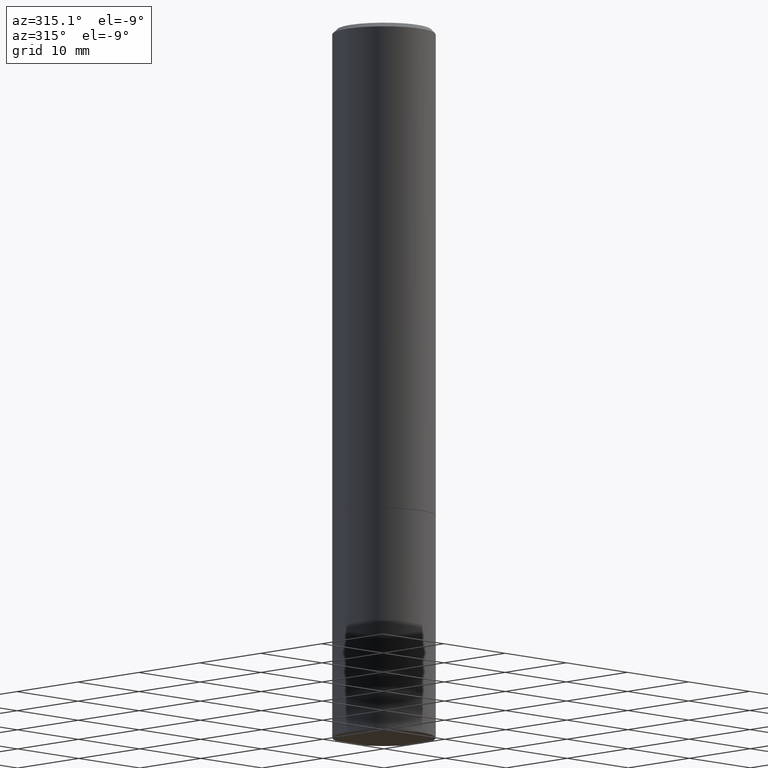
[diagram: clean part render]
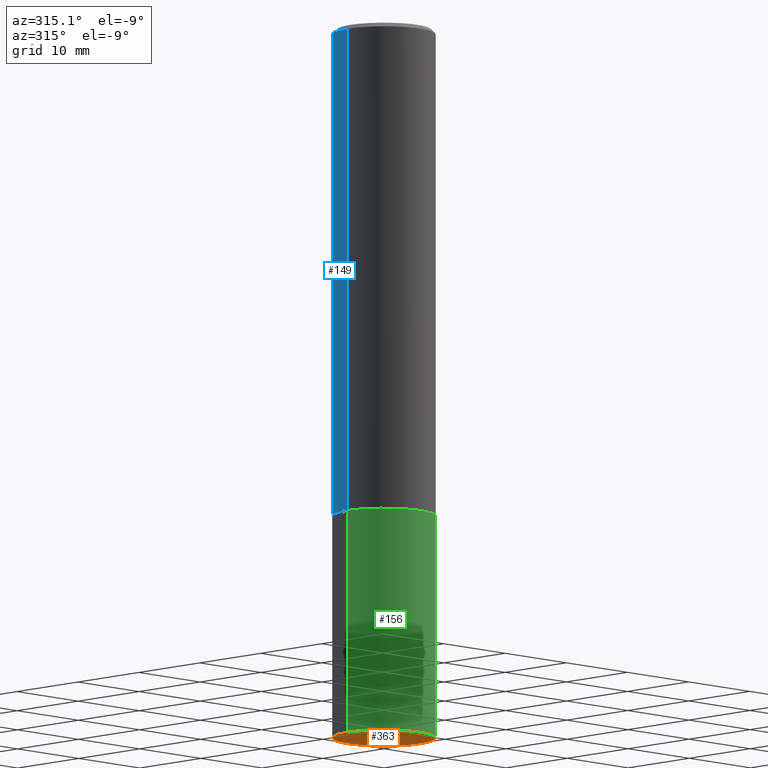
[diagram: same view with three faces highlighted in distinct colors, each labeled with its STEP entity id]
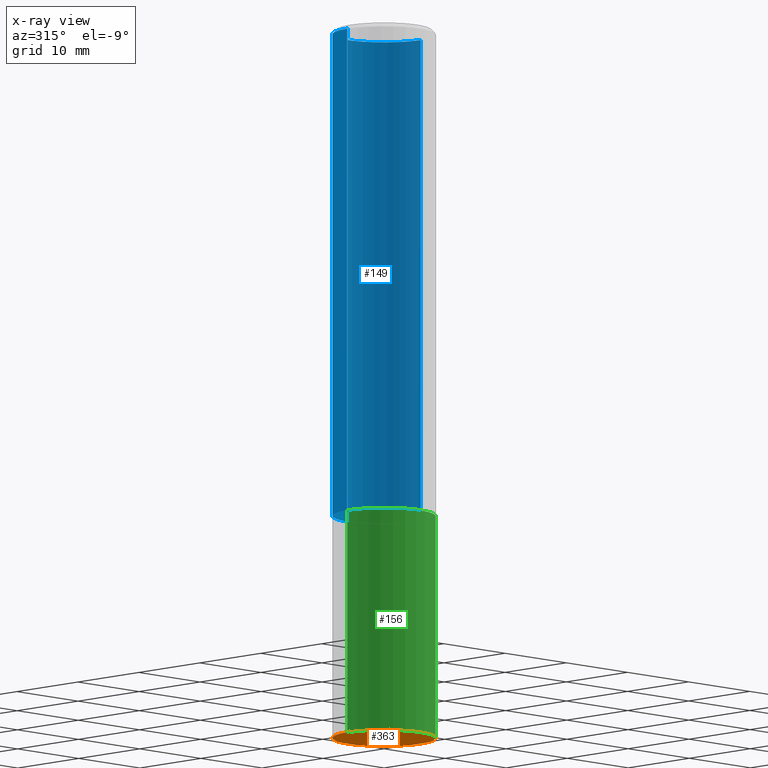
[diagram: x-ray of the same camera — body ghosted, the three highlighted faces saturated]
A machine part, auxiliary view with three faces highlighted in distinct colors.
The next image is the same camera in x-ray (body ghosted, the three faces saturated) — at least one of them is partly hidden behind the body in this view.
Their STEP definitions:

[orange] entity #363 — the highlighted planar face has unit normal (0, -0, -1).
#11 = VERTEX_POINT ( 'NONE', #192 ) ;
#19 = DIRECTION ( 'NONE',  ( -2.445468806185136597E-29, 3.491481338843145583E-15, 1.000000000000000000 ) ) ;
#27 = EDGE_CURVE ( 'NONE', #11, #116, #98, .T. ) ;
#42 = CARTESIAN_POINT ( 'NONE',  ( 1.649375784469575806E-15, 0.2361999999999885858, -3.267700000000001381 ) ) ;
#43 = CARTESIAN_POINT ( 'NONE',  ( 7.991058417971171713E-29, -1.140911357093774644E-14, -3.267700000000000049 ) ) ;
#51 = DIRECTION ( 'NONE',  ( 1.000000000000000000, -6.982962677686265133E-15, 0.000000000000000000 ) ) ;
#64 = DIRECTION ( 'NONE',  ( -1.000000000000000000, 6.982962677686265922E-15, -4.876176775795935793E-29 ) ) ;
#69 = EDGE_CURVE ( 'NONE', #116, #11, #264, .T. ) ;
#84 = CARTESIAN_POINT ( 'NONE',  ( 7.991058417971171713E-29, -1.140911357093774644E-14, -3.267700000000000049 ) ) ;
#91 = AXIS2_PLACEMENT_3D ( 'NONE', #43, #19, #151 ) ;
#98 = CIRCLE ( 'NONE', #274, 0.2361999999999999933 ) ;
#116 = VERTEX_POINT ( 'NONE', #362 ) ;
#117 = DIRECTION ( 'NONE',  ( 2.438088387897960049E-29, -3.491481338843145188E-15, -1.000000000000000000 ) ) ;
#132 = PLANE ( 'NONE',  #160 ) ;
#151 = DIRECTION ( 'NONE',  ( 1.000000000000000000, -6.982962677686265133E-15, 0.000000000000000000 ) ) ;
#160 = AXIS2_PLACEMENT_3D ( 'NONE', #42, #117, #64 ) ;
#192 = CARTESIAN_POINT ( 'NONE',  ( -0.2361999999999999933, -7.943871479852467996E-15, -3.267700000000000049 ) ) ;
#234 = EDGE_LOOP ( 'NONE', ( #255, #258 ) ) ;
#255 = ORIENTED_EDGE ( 'NONE', *, *, #69, .F. ) ;
#258 = ORIENTED_EDGE ( 'NONE', *, *, #27, .F. ) ;
#264 = CIRCLE ( 'NONE', #91, 0.2361999999999999933 ) ;
#274 = AXIS2_PLACEMENT_3D ( 'NONE', #84, #304, #51 ) ;
#304 = DIRECTION ( 'NONE',  ( -2.445468806185136597E-29, 3.491481338843145583E-15, 1.000000000000000000 ) ) ;
#362 = CARTESIAN_POINT ( 'NONE',  ( 0.2361999999999999933, -1.305848935540724297E-14, -3.267700000000000049 ) ) ;
#363 = ADVANCED_FACE ( 'NONE', ( #364 ), #132, .T. ) ;
#364 = FACE_OUTER_BOUND ( 'NONE', #234, .T. ) ;

[blue] entity #149 — the highlighted cylindrical surface (partial cylindrical patch) has radius 5.9995 mm, axis along (-0, 0, 1).
#6 = CARTESIAN_POINT ( 'NONE',  ( 5.485431079153880270E-29, -7.831741791159060910E-15, -2.243100000000000094 ) ) ;
#15 = AXIS2_PLACEMENT_3D ( 'NONE', #128, #245, #240 ) ;
#21 = EDGE_CURVE ( 'NONE', #198, #120, #329, .T. ) ;
#22 = EDGE_CURVE ( 'NONE', #198, #351, #141, .T. ) ;
#36 = DIRECTION ( 'NONE',  ( -2.445468806185136597E-29, 3.491481338843145583E-15, 1.000000000000000000 ) ) ;
#37 = ORIENTED_EDGE ( 'NONE', *, *, #21, .T. ) ;
#49 = CARTESIAN_POINT ( 'NONE',  ( -0.2362000000000000210, -2.272483767102602555E-15, -2.243100000000000094 ) ) ;
#74 = CYLINDRICAL_SURFACE ( 'NONE', #15, 0.2361999999999998545 ) ;
#80 = VERTEX_POINT ( 'NONE', #259 ) ;
#85 = EDGE_CURVE ( 'NONE', #351, #80, #317, .T. ) ;
#112 = CARTESIAN_POINT ( 'NONE',  ( 0.2361999999999999933, -9.481117575628557435E-15, -2.243100000000000094 ) ) ;
#114 = DIRECTION ( 'NONE',  ( 1.000000000000000000, -6.982962677686269077E-15, 0.000000000000000000 ) ) ;
#120 = VERTEX_POINT ( 'NONE', #49 ) ;
#125 = DIRECTION ( 'NONE',  ( 1.000000000000000000, -6.982962677686266711E-15, 0.000000000000000000 ) ) ;
#128 = CARTESIAN_POINT ( 'NONE',  ( 0.000000000000000000, 0.000000000000000000, 0.000000000000000000 ) ) ;
#133 = EDGE_LOOP ( 'NONE', ( #37, #165, #180, #135 ) ) ;
#135 = ORIENTED_EDGE ( 'NONE', *, *, #22, .F. ) ;
#141 = LINE ( 'NONE', #226, #157 ) ;
#149 = ADVANCED_FACE ( 'NONE', ( #155 ), #74, .T. ) ;
#155 = FACE_OUTER_BOUND ( 'NONE', #133, .T. ) ;
#157 = VECTOR ( 'NONE', #342, 39.37007874015748143 ) ;
#165 = ORIENTED_EDGE ( 'NONE', *, *, #182, .T. ) ;
#169 = LINE ( 'NONE', #335, #189 ) ;
#180 = ORIENTED_EDGE ( 'NONE', *, *, #85, .F. ) ;
#182 = EDGE_CURVE ( 'NONE', #120, #80, #169, .T. ) ;
#189 = VECTOR ( 'NONE', #248, 39.37007874015748143 ) ;
#198 = VERTEX_POINT ( 'NONE', #112 ) ;
#207 = CARTESIAN_POINT ( 'NONE',  ( 4.890937612370288923E-31, -6.982962677686312563E-17, -0.02000000000000006287 ) ) ;
#218 = CARTESIAN_POINT ( 'NONE',  ( 0.2361999999999996880, -1.690279253850496602E-15, -0.02000000000000006287 ) ) ;
#226 = CARTESIAN_POINT ( 'NONE',  ( 0.2361999999999998545, -1.649375784469495145E-15, 1.151752954442999387E-29 ) ) ;
#233 = DIRECTION ( 'NONE',  ( -2.445468806185136597E-29, 3.491481338843145583E-15, 1.000000000000000000 ) ) ;
#240 = DIRECTION ( 'NONE',  ( 1.000000000000000000, -6.982962677686266711E-15, 4.876176775795935793E-29 ) ) ;
#243 = AXIS2_PLACEMENT_3D ( 'NONE', #207, #233, #125 ) ;
#245 = DIRECTION ( 'NONE',  ( -2.445468806185136597E-29, 3.491481338843145583E-15, 1.000000000000000000 ) ) ;
#248 = DIRECTION ( 'NONE',  ( -2.445468806185136877E-29, 3.491481338843145188E-15, 1.000000000000000000 ) ) ;
#259 = CARTESIAN_POINT ( 'NONE',  ( -0.2361999999999996880, 1.579546157692630860E-15, -0.02000000000000006287 ) ) ;
#317 = CIRCLE ( 'NONE', #243, 0.2361999999999996880 ) ;
#329 = CIRCLE ( 'NONE', #348, 0.2361999999999999933 ) ;
#335 = CARTESIAN_POINT ( 'NONE',  ( -0.2361999999999998545, 1.678301941865355605E-15, -1.161852468318208056E-29 ) ) ;
#342 = DIRECTION ( 'NONE',  ( -2.445468806185136877E-29, 3.491481338843145188E-15, 1.000000000000000000 ) ) ;
#348 = AXIS2_PLACEMENT_3D ( 'NONE', #6, #36, #114 ) ;
#351 = VERTEX_POINT ( 'NONE', #218 ) ;

[green] entity #156 — the highlighted cylindrical surface (partial cylindrical patch) has radius 5.9995 mm, axis along (-0, 0, 1).
#1 = EDGE_CURVE ( 'NONE', #11, #229, #306, .T. ) ;
#9 = ORIENTED_EDGE ( 'NONE', *, *, #1, .F. ) ;
#11 = VERTEX_POINT ( 'NONE', #192 ) ;
#12 = ORIENTED_EDGE ( 'NONE', *, *, #260, .T. ) ;
#23 = CYLINDRICAL_SURFACE ( 'NONE', #291, 0.2361999999999999933 ) ;
#27 = EDGE_CURVE ( 'NONE', #11, #116, #98, .T. ) ;
#29 = ORIENTED_EDGE ( 'NONE', *, *, #301, .F. ) ;
#51 = DIRECTION ( 'NONE',  ( 1.000000000000000000, -6.982962677686265133E-15, 0.000000000000000000 ) ) ;
#60 = CARTESIAN_POINT ( 'NONE',  ( -0.2361999999999999933, -7.943871479852467996E-15, -2.244100000000000428 ) ) ;
#61 = DIRECTION ( 'NONE',  ( -2.445468806185136877E-29, 3.491481338843145188E-15, 1.000000000000000000 ) ) ;
#82 = CARTESIAN_POINT ( 'NONE',  ( -0.2361999999999999933, 1.678301941865356591E-15, -1.161852468318208757E-29 ) ) ;
#84 = CARTESIAN_POINT ( 'NONE',  ( 7.991058417971171713E-29, -1.140911357093774644E-14, -3.267700000000000049 ) ) ;
#87 = ORIENTED_EDGE ( 'NONE', *, *, #27, .T. ) ;
#98 = CIRCLE ( 'NONE', #274, 0.2361999999999999933 ) ;
#106 = DIRECTION ( 'NONE',  ( -2.445468806185136877E-29, 3.491481338843145188E-15, 1.000000000000000000 ) ) ;
#116 = VERTEX_POINT ( 'NONE', #362 ) ;
#137 = DIRECTION ( 'NONE',  ( -2.445468806185136597E-29, 3.491481338843145583E-15, 1.000000000000000000 ) ) ;
#156 = ADVANCED_FACE ( 'NONE', ( #158 ), #23, .T. ) ;
#158 = FACE_OUTER_BOUND ( 'NONE', #257, .T. ) ;
#179 = CIRCLE ( 'NONE', #298, 0.2361999999999999933 ) ;
#192 = CARTESIAN_POINT ( 'NONE',  ( -0.2361999999999999933, -7.943871479852467996E-15, -3.267700000000000049 ) ) ;
#193 = CARTESIAN_POINT ( 'NONE',  ( 0.2361999999999999933, -1.649375784469496131E-15, 1.151752954443000088E-29 ) ) ;
#217 = CARTESIAN_POINT ( 'NONE',  ( 0.000000000000000000, 0.000000000000000000, 0.000000000000000000 ) ) ;
#229 = VERTEX_POINT ( 'NONE', #60 ) ;
#231 = VERTEX_POINT ( 'NONE', #336 ) ;
#247 = CARTESIAN_POINT ( 'NONE',  ( 5.487876547960065873E-29, -7.835233272497903917E-15, -2.244100000000000428 ) ) ;
#252 = DIRECTION ( 'NONE',  ( 1.000000000000000000, -6.982962677686269077E-15, 0.000000000000000000 ) ) ;
#257 = EDGE_LOOP ( 'NONE', ( #9, #87, #12, #29 ) ) ;
#260 = EDGE_CURVE ( 'NONE', #116, #231, #283, .T. ) ;
#265 = VECTOR ( 'NONE', #106, 39.37007874015748143 ) ;
#272 = VECTOR ( 'NONE', #61, 39.37007874015748143 ) ;
#274 = AXIS2_PLACEMENT_3D ( 'NONE', #84, #304, #51 ) ;
#283 = LINE ( 'NONE', #193, #265 ) ;
#291 = AXIS2_PLACEMENT_3D ( 'NONE', #217, #334, #302 ) ;
#298 = AXIS2_PLACEMENT_3D ( 'NONE', #247, #137, #252 ) ;
#301 = EDGE_CURVE ( 'NONE', #229, #231, #179, .T. ) ;
#302 = DIRECTION ( 'NONE',  ( 1.000000000000000000, -6.982962677686266711E-15, 4.876176775795936353E-29 ) ) ;
#304 = DIRECTION ( 'NONE',  ( -2.445468806185136597E-29, 3.491481338843145583E-15, 1.000000000000000000 ) ) ;
#306 = LINE ( 'NONE', #82, #272 ) ;
#334 = DIRECTION ( 'NONE',  ( -2.445468806185136597E-29, 3.491481338843145583E-15, 1.000000000000000000 ) ) ;
#336 = CARTESIAN_POINT ( 'NONE',  ( 0.2361999999999999933, -9.484609056967400443E-15, -2.244100000000000428 ) ) ;
#362 = CARTESIAN_POINT ( 'NONE',  ( 0.2361999999999999933, -1.305848935540724297E-14, -3.267700000000000049 ) ) ;